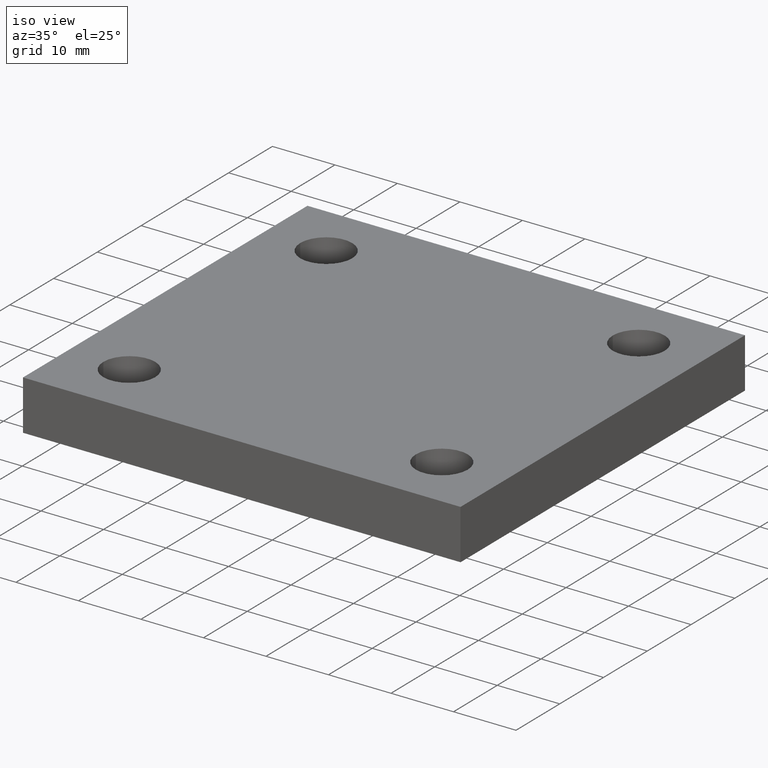
[diagram: clean part render]
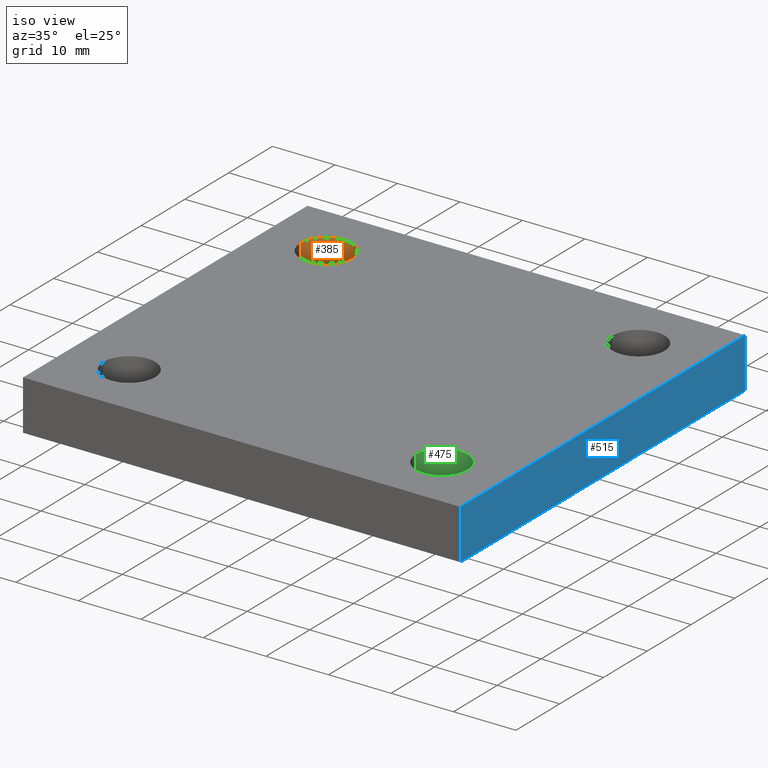
[diagram: same view with three faces highlighted in distinct colors, each labeled with its STEP entity id]
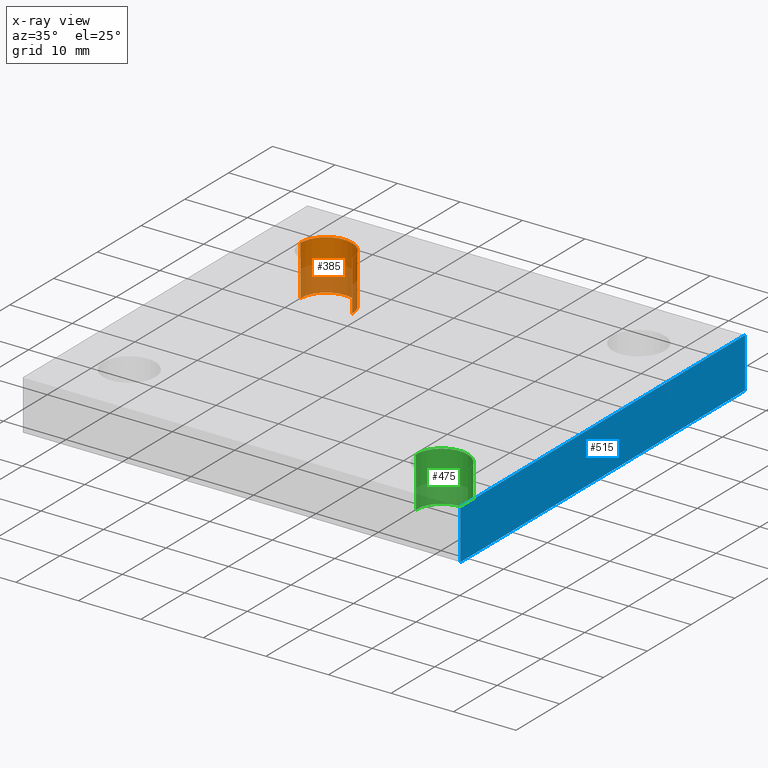
[diagram: x-ray of the same camera — body ghosted, the three highlighted faces saturated]
A machine part, iso view with three faces highlighted in distinct colors.
The next image is the same camera in x-ray (body ghosted, the three faces saturated) — at least one of them is partly hidden behind the body in this view.
Their STEP definitions:

[orange] entity #385 — the highlighted face is a freeform B-spline surface patch.
#196=CARTESIAN_POINT('',(30.089752180801721,0.972626184769104,0.0));
#197=VERTEX_POINT('',#196);
#198=CARTESIAN_POINT('',(30.089752180801721,0.972626184769104,8.0));
#199=VERTEX_POINT('',#198);
#200=CARTESIAN_POINT('',(30.089752180801721,0.972626184769104,0.0));
#201=DIRECTION('',(0.0,0.0,1.0));
#202=VECTOR('',#201,8.0);
#203=LINE('',#200,#202);
#204=EDGE_CURVE('',#197,#199,#203,.T.);
#206=CARTESIAN_POINT('',(21.789752180801720,0.972626184769105,0.0));
#207=VERTEX_POINT('',#206);
#215=CARTESIAN_POINT('',(21.789752180801720,0.972626184769105,8.0));
#216=VERTEX_POINT('',#215);
#217=CARTESIAN_POINT('',(21.789752180801720,0.972626184769105,8.0));
#218=DIRECTION('',(0.0,0.0,-1.0));
#219=VECTOR('',#218,8.0);
#220=LINE('',#217,#219);
#221=EDGE_CURVE('',#216,#207,#220,.T.);
#341=CARTESIAN_POINT('',(21.789752180801720,0.972626184769104,8.0));
#342=CARTESIAN_POINT('',(21.789752180801720,0.972626184769104,0.0));
#343=CARTESIAN_POINT('',(21.789752180801720,-3.177373815230894,8.0));
#344=CARTESIAN_POINT('',(21.789752180801720,-3.177373815230894,0.0));
#345=CARTESIAN_POINT('',(25.939752180801719,-3.177373815230895,8.0));
#346=CARTESIAN_POINT('',(25.939752180801719,-3.177373815230895,0.0));
#347=CARTESIAN_POINT('',(30.089752180801721,-3.177373815230893,8.0));
#348=CARTESIAN_POINT('',(30.089752180801721,-3.177373815230893,0.0));
#349=CARTESIAN_POINT('',(30.089752180801717,0.972626184769105,8.0));
#350=CARTESIAN_POINT('',(30.089752180801717,0.972626184769105,0.0));
#351=CARTESIAN_POINT('',(30.089752180801721,5.122626184769103,8.0));
#352=CARTESIAN_POINT('',(30.089752180801721,5.122626184769103,0.0));
#353=CARTESIAN_POINT('',(25.939752180801719,5.122626184769103,8.0));
#354=CARTESIAN_POINT('',(25.939752180801719,5.122626184769103,0.0));
#355=CARTESIAN_POINT('',(21.789752180801720,5.122626184769101,8.0));
#356=CARTESIAN_POINT('',(21.789752180801720,5.122626184769101,0.0));
#357=CARTESIAN_POINT('',(21.789752180801720,0.972626184769104,8.0));
#358=CARTESIAN_POINT('',(21.789752180801720,0.972626184769104,0.0));
#366=(BOUNDED_SURFACE()B_SPLINE_SURFACE(1,2,((#341,#343,#345,#347,#349,#351,#353,#355,#357),(#342,#344,#346,#348,#350,#352,#354,#356,#358)),.UNSPECIFIED.,.F.,.T.,.U.)B_SPLINE_SURFACE_WITH_KNOTS((2,2),(3,2,2,2,3),(-0.963855421686747,0.963855421686747),(0.0,6.518804756198821,13.037609512397642,19.556414268596463,26.075219024795285),.UNSPECIFIED.)GEOMETRIC_REPRESENTATION_ITEM()RATIONAL_B_SPLINE_SURFACE(((1.0,0.707106781186548,1.0,0.707106781186548,1.0,0.707106781186548,1.0,0.707106781186548,1.0),(1.0,0.707106781186548,1.0,0.707106781186548,1.0,0.707106781186548,1.0,0.707106781186548,1.0)))REPRESENTATION_ITEM('')SURFACE());
#367=ORIENTED_EDGE('',*,*,#204,.T.);
#368=CARTESIAN_POINT('',(25.939752180801719,0.972626184769104,8.0));
#369=DIRECTION('',(0.0,0.0,-1.0));
#370=DIRECTION('',(1.0,0.0,0.0));
#371=AXIS2_PLACEMENT_3D('',#368,#369,#370);
#372=CIRCLE('',#371,4.150000000000000);
#373=EDGE_CURVE('',#216,#199,#372,.T.);
#374=ORIENTED_EDGE('',*,*,#373,.F.);
#375=ORIENTED_EDGE('',*,*,#221,.T.);
#376=CARTESIAN_POINT('',(25.939752180801719,0.972626184769104,0.0));
#377=DIRECTION('',(0.0,0.0,1.0));
#378=DIRECTION('',(1.0,0.0,0.0));
#379=AXIS2_PLACEMENT_3D('',#376,#377,#378);
#380=CIRCLE('',#379,4.150000000000000);
#381=EDGE_CURVE('',#197,#207,#380,.T.);
#382=ORIENTED_EDGE('',*,*,#381,.F.);
#383=EDGE_LOOP('',(#367,#374,#375,#382));
#384=FACE_OUTER_BOUND('',#383,.T.);
#385=ADVANCED_FACE('',(#384),#366,.F.);

[blue] entity #515 — the highlighted planar face has unit normal (1, 0, 0).
#476=CARTESIAN_POINT('',(85.939752180801733,10.972626184769112,0.0));
#477=DIRECTION('',(1.0,0.0,0.0));
#478=DIRECTION('',(0.0,0.0,-1.0));
#479=AXIS2_PLACEMENT_3D('',#476,#477,#478);
#480=PLANE('',#479);
#481=CARTESIAN_POINT('',(85.939752180801733,10.972626184769112,8.0));
#482=VERTEX_POINT('',#481);
#483=CARTESIAN_POINT('',(85.939752180801747,-54.027373815230888,8.0));
#484=VERTEX_POINT('',#483);
#485=CARTESIAN_POINT('',(85.939752180801733,10.972626184769112,8.0));
#486=DIRECTION('',(0.0,-1.0,0.0));
#487=VECTOR('',#486,65.0);
#488=LINE('',#485,#487);
#489=EDGE_CURVE('',#482,#484,#488,.T.);
#490=ORIENTED_EDGE('',*,*,#489,.T.);
#491=CARTESIAN_POINT('',(85.939752180801747,-54.027373815230888,0.0));
#492=VERTEX_POINT('',#491);
#493=CARTESIAN_POINT('',(85.939752180801747,-54.027373815230888,0.0));
#494=DIRECTION('',(0.0,0.0,1.0));
#495=VECTOR('',#494,8.0);
#496=LINE('',#493,#495);
#497=EDGE_CURVE('',#492,#484,#496,.T.);
#498=ORIENTED_EDGE('',*,*,#497,.F.);
#499=CARTESIAN_POINT('',(85.939752180801733,10.972626184769112,0.0));
#500=VERTEX_POINT('',#499);
#501=CARTESIAN_POINT('',(85.939752180801747,-54.027373815230888,0.0));
#502=DIRECTION('',(0.0,1.0,0.0));
#503=VECTOR('',#502,65.0);
#504=LINE('',#501,#503);
#505=EDGE_CURVE('',#492,#500,#504,.T.);
#506=ORIENTED_EDGE('',*,*,#505,.T.);
#507=CARTESIAN_POINT('',(85.939752180801733,10.972626184769112,0.0));
#508=DIRECTION('',(0.0,0.0,1.0));
#509=VECTOR('',#508,8.0);
#510=LINE('',#507,#509);
#511=EDGE_CURVE('',#500,#482,#510,.T.);
#512=ORIENTED_EDGE('',*,*,#511,.T.);
#513=EDGE_LOOP('',(#490,#498,#506,#512));
#514=FACE_OUTER_BOUND('',#513,.T.);
#515=ADVANCED_FACE('',(#514),#480,.T.);

[green] entity #475 — the highlighted face is a freeform B-spline surface patch.
#70=CARTESIAN_POINT('',(80.089752180801753,-44.027373815230888,0.0));
#71=VERTEX_POINT('',#70);
#72=CARTESIAN_POINT('',(80.089752180801753,-44.027373815230888,8.0));
#73=VERTEX_POINT('',#72);
#74=CARTESIAN_POINT('',(80.089752180801753,-44.027373815230888,0.0));
#75=DIRECTION('',(0.0,0.0,1.0));
#76=VECTOR('',#75,8.0);
#77=LINE('',#74,#76);
#78=EDGE_CURVE('',#71,#73,#77,.T.);
#80=CARTESIAN_POINT('',(71.789752180801756,-44.027373815230888,0.0));
#81=VERTEX_POINT('',#80);
#89=CARTESIAN_POINT('',(71.789752180801756,-44.027373815230888,8.0));
#90=VERTEX_POINT('',#89);
#91=CARTESIAN_POINT('',(71.789752180801756,-44.027373815230888,8.0));
#92=DIRECTION('',(0.0,0.0,-1.0));
#93=VECTOR('',#92,8.0);
#94=LINE('',#91,#93);
#95=EDGE_CURVE('',#90,#81,#94,.T.);
#431=CARTESIAN_POINT('',(71.789752180801756,-44.027373815230888,8.0));
#432=CARTESIAN_POINT('',(71.789752180801756,-44.027373815230888,0.0));
#433=CARTESIAN_POINT('',(71.789752180801756,-48.177373815230894,8.0));
#434=CARTESIAN_POINT('',(71.789752180801756,-48.177373815230894,0.0));
#435=CARTESIAN_POINT('',(75.939752180801761,-48.177373815230894,8.0));
#436=CARTESIAN_POINT('',(75.939752180801761,-48.177373815230894,0.0));
#437=CARTESIAN_POINT('',(80.089752180801767,-48.177373815230894,8.0));
#438=CARTESIAN_POINT('',(80.089752180801767,-48.177373815230894,0.0));
#439=CARTESIAN_POINT('',(80.089752180801767,-44.027373815230888,8.0));
#440=CARTESIAN_POINT('',(80.089752180801767,-44.027373815230888,0.0));
#441=CARTESIAN_POINT('',(80.089752180801767,-39.877373815230882,8.0));
#442=CARTESIAN_POINT('',(80.089752180801767,-39.877373815230882,0.0));
#443=CARTESIAN_POINT('',(75.939752180801761,-39.877373815230882,8.0));
#444=CARTESIAN_POINT('',(75.939752180801761,-39.877373815230882,0.0));
#445=CARTESIAN_POINT('',(71.789752180801756,-39.877373815230882,8.0));
#446=CARTESIAN_POINT('',(71.789752180801756,-39.877373815230882,0.0));
#447=CARTESIAN_POINT('',(71.789752180801756,-44.027373815230888,8.0));
#448=CARTESIAN_POINT('',(71.789752180801756,-44.027373815230888,0.0));
#456=(BOUNDED_SURFACE()B_SPLINE_SURFACE(1,2,((#431,#433,#435,#437,#439,#441,#443,#445,#447),(#432,#434,#436,#438,#440,#442,#444,#446,#448)),.UNSPECIFIED.,.F.,.T.,.U.)B_SPLINE_SURFACE_WITH_KNOTS((2,2),(3,2,2,2,3),(-0.963855421686747,0.963855421686747),(0.0,6.518804756198821,13.037609512397642,19.556414268596463,26.075219024795285),.UNSPECIFIED.)GEOMETRIC_REPRESENTATION_ITEM()RATIONAL_B_SPLINE_SURFACE(((1.0,0.707106781186548,1.0,0.707106781186548,1.0,0.707106781186548,1.0,0.707106781186548,1.0),(1.0,0.707106781186548,1.0,0.707106781186548,1.0,0.707106781186548,1.0,0.707106781186548,1.0)))REPRESENTATION_ITEM('')SURFACE());
#457=ORIENTED_EDGE('',*,*,#78,.T.);
#458=CARTESIAN_POINT('',(75.939752180801761,-44.027373815230888,8.0));
#459=DIRECTION('',(0.0,0.0,-1.0));
#460=DIRECTION('',(1.0,0.0,0.0));
#461=AXIS2_PLACEMENT_3D('',#458,#459,#460);
#462=CIRCLE('',#461,4.150000000000000);
#463=EDGE_CURVE('',#90,#73,#462,.T.);
#464=ORIENTED_EDGE('',*,*,#463,.F.);
#465=ORIENTED_EDGE('',*,*,#95,.T.);
#466=CARTESIAN_POINT('',(75.939752180801761,-44.027373815230888,0.0));
#467=DIRECTION('',(0.0,0.0,1.0));
#468=DIRECTION('',(1.0,0.0,0.0));
#469=AXIS2_PLACEMENT_3D('',#466,#467,#468);
#470=CIRCLE('',#469,4.150000000000000);
#471=EDGE_CURVE('',#71,#81,#470,.T.);
#472=ORIENTED_EDGE('',*,*,#471,.F.);
#473=EDGE_LOOP('',(#457,#464,#465,#472));
#474=FACE_OUTER_BOUND('',#473,.T.);
#475=ADVANCED_FACE('',(#474),#456,.F.);